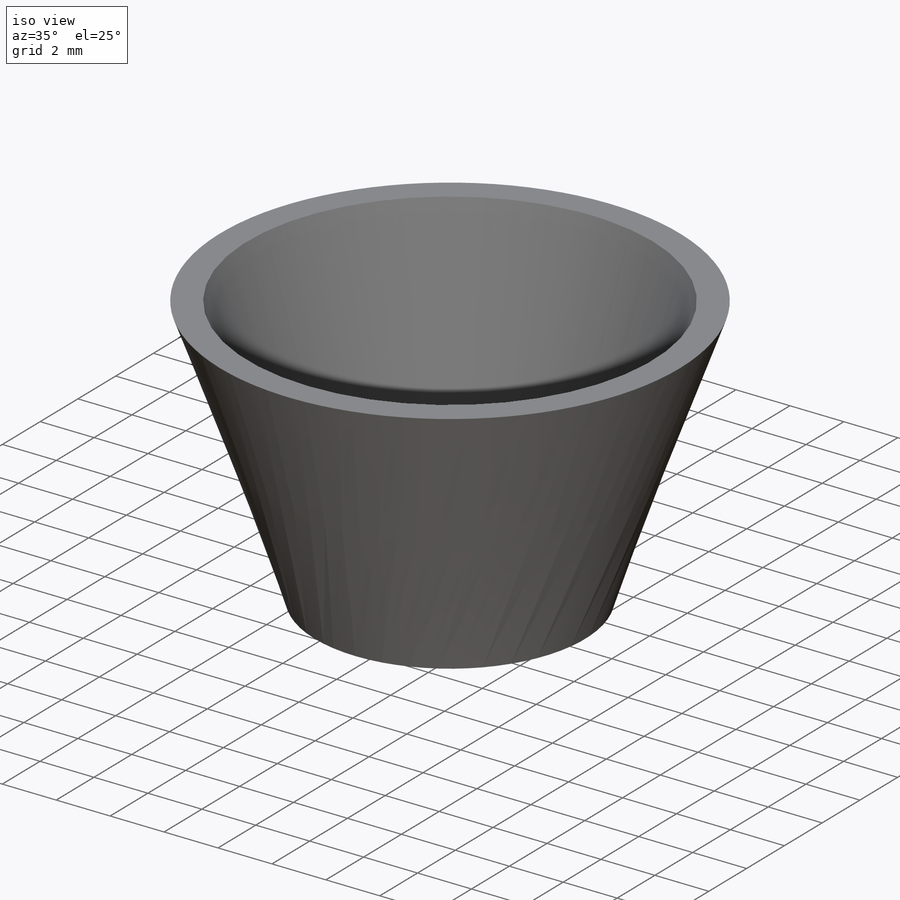
[diagram: iso view]
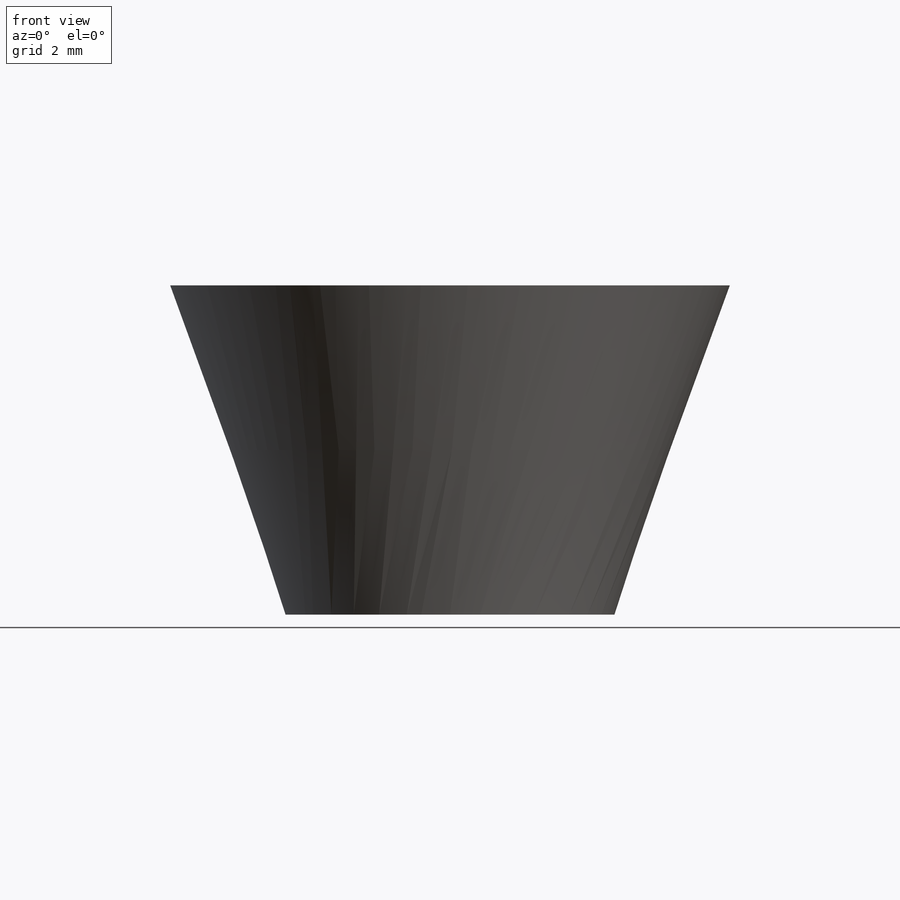
[diagram: front view]
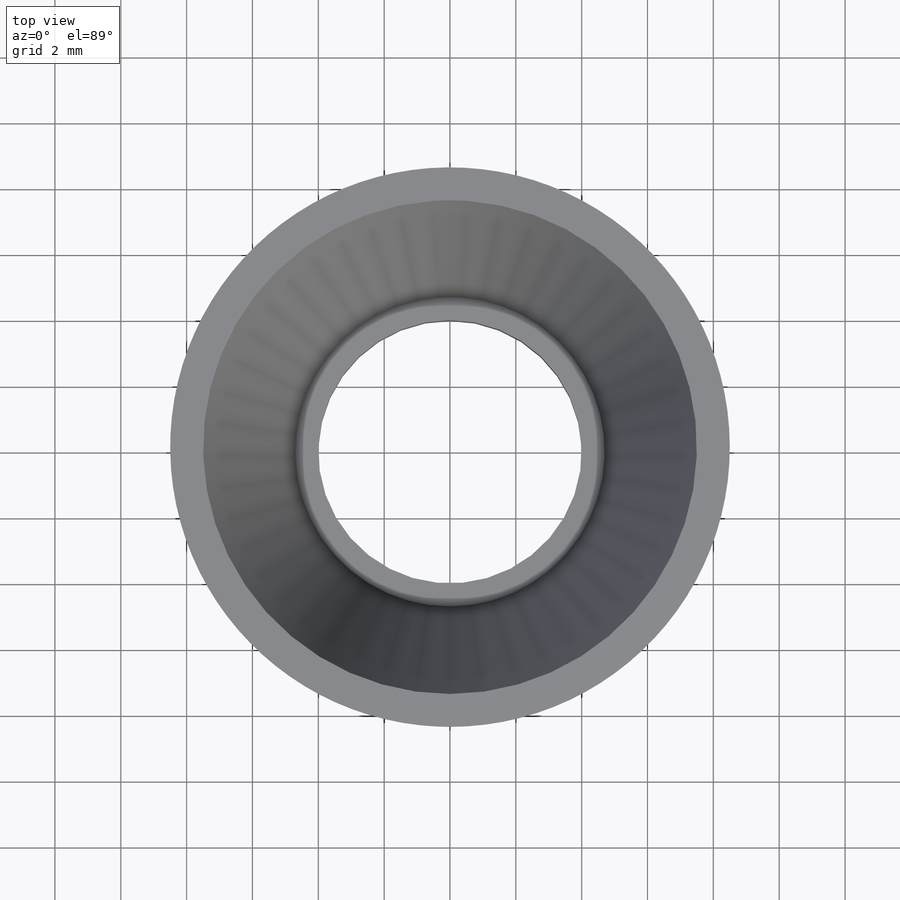
[diagram: top view]
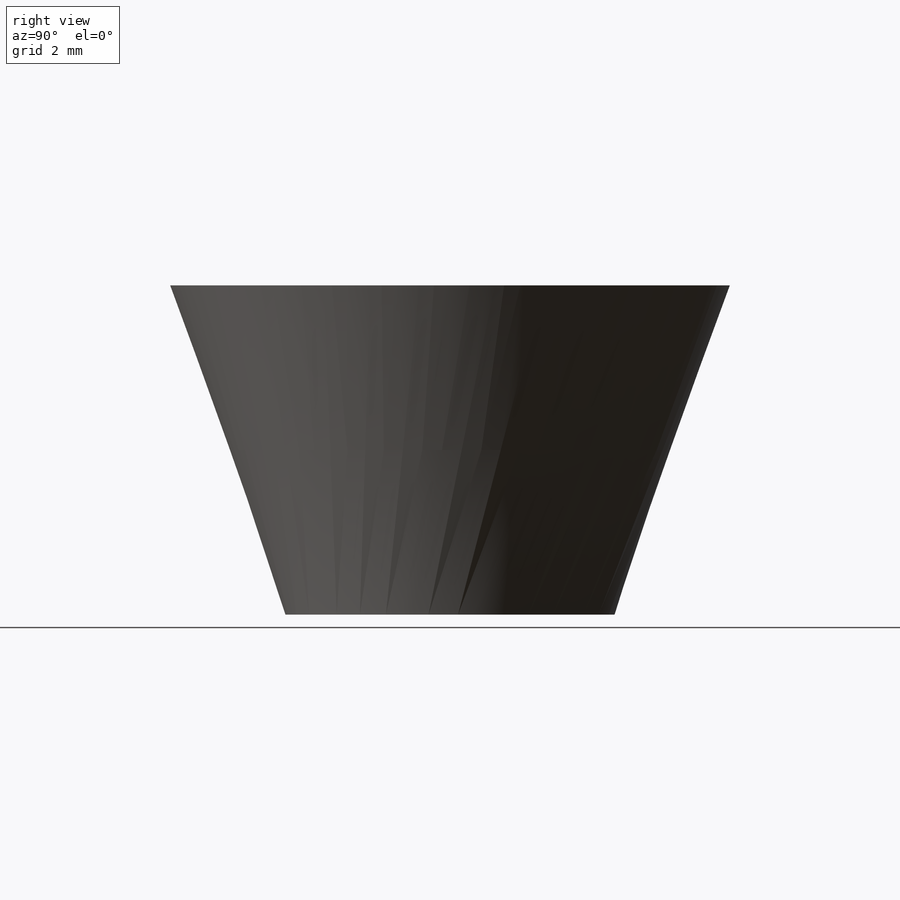
[diagram: right view]
SOLIDWORKS PART (.sldprt)
format: sldprt  version: not decoded by parser v0  size: 172,544 bytes
history: native  units: mm
features: sketch x7, plane x3, material x1, extrude x1 (+8 scaffold rows collapsed)
feature tree (20):
  scaffold x8  (default folders/planes/origin — collapsed)
  material  "Materiale <non specificato>"
  plane  "Piano frontale"
  plane  "Piano superiore"
  plane  "Piano destro"
  sketch  "Schizzo1"  dims[D1=8.0mm D2=10.0mm]
  sketch  "Schizzo3D3"  dims[c1.D2=~12.556955mm c2.D2=17.0mm c2.D3=~6.545981mm c3.D3=15.0mm c3.D1=10.0mm]
  sketch  "Schizzo3D4"  dims[D1=~6.792387mm]
  sketch  "Schizzo3D5"  dims[D1=~3.756646mm]
  sketch  "Schizzo3"
  extrude  "Estrusione-Estrusione1"  Depth=2mm
  sketch  "Schizzo4"
  sketch  "Schizzo5"
decode coverage: 5 of 8 modeling features carry decoded parameters
note: ~ marks probable driven/reference dimensions
note: suppression state not decoded; provenance and decode notes live in map.json
